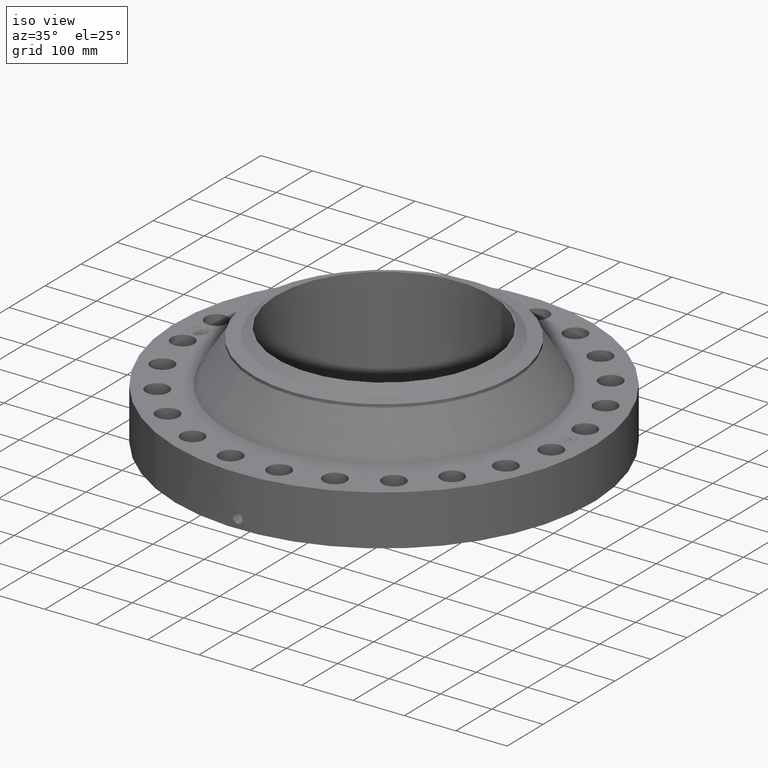
[diagram: clean part render]
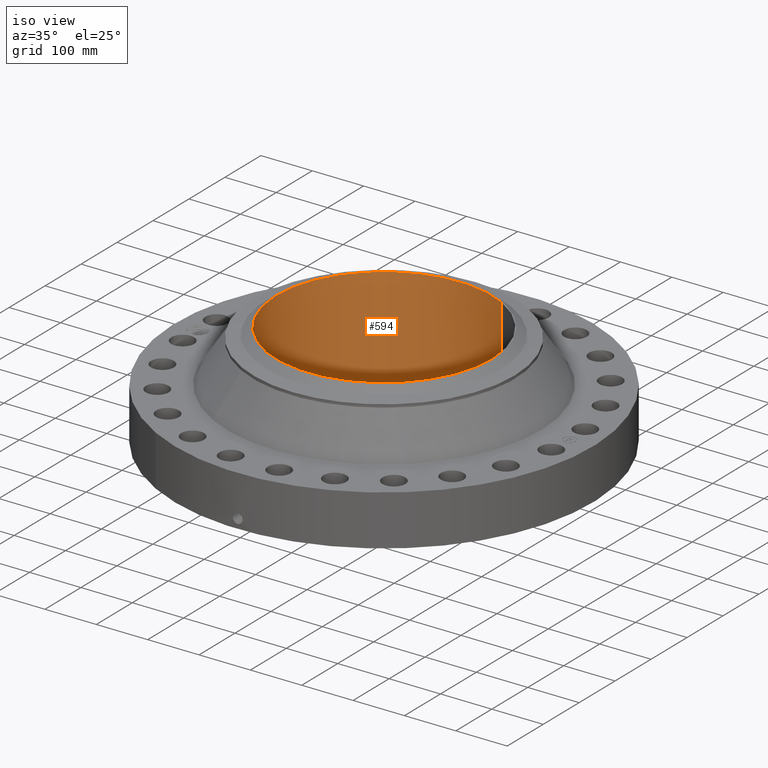
[diagram: same view with one face highlighted and labeled with its STEP entity id]
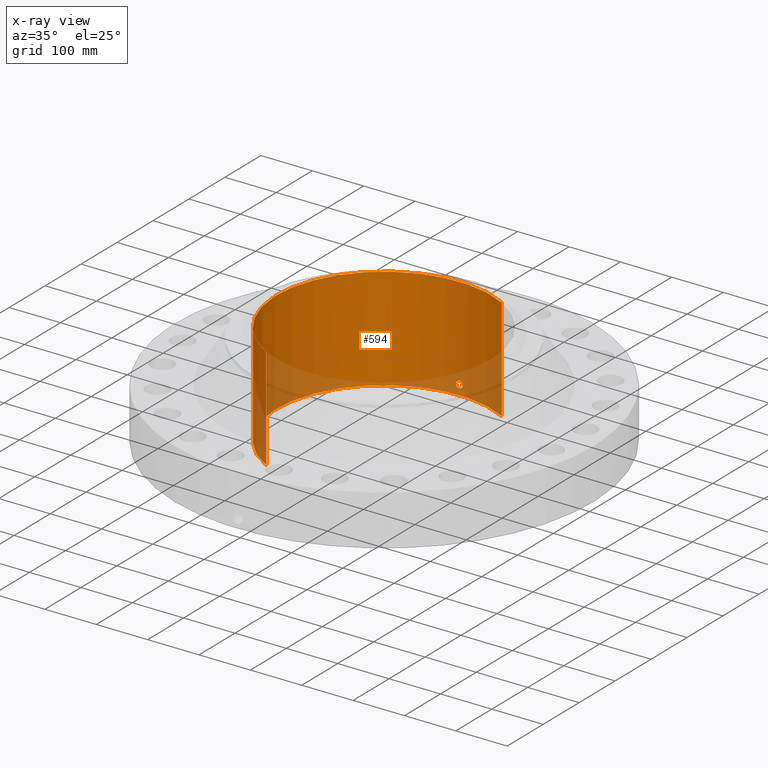
[diagram: x-ray of the same camera — body ghosted, the highlighted face saturated]
A machine part, iso view. The second image highlights one B-rep face of the part: STEP entity #594.
The next image is the same camera in x-ray: the body ghosted, the highlighted face saturated — about 20% of this face is hidden behind the body in this view.
In plain terms, the highlighted cylindrical surface (partial cylindrical patch) has radius 209.55 mm, axis along (0, 0, -1).
Its self-contained STEP definition (entity closure, byte-faithful):
#232=AXIS2_PLACEMENT_3D('Cylinder Axis2P3D',#229,#230,#231) ;
#533=AXIS2_PLACEMENT_3D('Circle Axis2P3D',#531,#532,$) ;
#543=AXIS2_PLACEMENT_3D('Circle Axis2P3D',#541,#542,$) ;
#229=CARTESIAN_POINT('Axis2P3D Location',(0.,0.,3.93750000002)) ;
#238=CARTESIAN_POINT('Vertex',(3.9552606935,7.24005613562,7.87500000003)) ;
#240=CARTESIAN_POINT('Vertex',(-3.9552606935,-7.24005613562,7.87500000003)) ;
#243=CARTESIAN_POINT('Line Origine',(3.9552606935,7.24005613562,3.93750000002)) ;
#247=CARTESIAN_POINT('Vertex',(3.9552606935,7.24005613562,-7.38516859215E-014)) ;
#254=CARTESIAN_POINT('Vertex',(-3.9552606935,-7.24005613562,-7.38516859215E-014)) ;
#257=CARTESIAN_POINT('Line Origine',(-3.9552606935,-7.24005613562,3.93750000002)) ;
#531=CARTESIAN_POINT('Axis2P3D Location',(0.,0.,7.87500000003)) ;
#541=CARTESIAN_POINT('Axis2P3D Location',(0.,0.,-7.38516859215E-014)) ;
#553=CARTESIAN_POINT('Control Point',(0.219395640473,8.24708224486,0.869856384655)) ;
#554=CARTESIAN_POINT('Control Point',(0.194443177078,8.24774605074,0.915531562527)) ;
#555=CARTESIAN_POINT('Control Point',(0.157605919929,8.24863158829,0.95471073957)) ;
#556=CARTESIAN_POINT('Control Point',(0.111109683392,8.24949278377,0.983242387189)) ;
#557=CARTESIAN_POINT('Control Point',(0.0336753629051,8.25017798873,1.00588229165)) ;
#558=CARTESIAN_POINT('Control Point',(-0.0446689823209,8.24994122763,0.998056659372)) ;
#559=CARTESIAN_POINT('Control Point',(-0.070298149277,8.2497574269,0.992044416594)) ;
#560=CARTESIAN_POINT('Control Point',(-0.143953549195,8.24894518048,0.96421372175)) ;
#561=CARTESIAN_POINT('Control Point',(-0.20324064292,8.24761932207,0.909501491169)) ;
#562=CARTESIAN_POINT('Control Point',(-0.232206727917,8.24674965403,0.863264055807)) ;
#563=CARTESIAN_POINT('Control Point',(-0.255840010948,8.24603466121,0.785116646347)) ;
#564=CARTESIAN_POINT('Control Point',(-0.24828366564,8.24626308003,0.705750360397)) ;
#565=CARTESIAN_POINT('Control Point',(-0.242049868056,8.24645425832,0.67918645327)) ;
#566=CARTESIAN_POINT('Control Point',(-0.232316018888,8.24673852637,0.653794209399)) ;
#567=CARTESIAN_POINT('Control Point',(-0.219395640474,8.24708224486,0.630143615351)) ;
#568=CARTESIAN_POINT('Vertex',(0.219395640473,8.24708224486,0.869856384655)) ;
#570=CARTESIAN_POINT('Vertex',(-0.219395640473,8.24708224486,0.630143615351)) ;
#574=CARTESIAN_POINT('Control Point',(-0.219395640473,8.24708224486,0.630143615351)) ;
#575=CARTESIAN_POINT('Control Point',(-0.194443177127,8.24774605074,0.58446843757)) ;
#576=CARTESIAN_POINT('Control Point',(-0.157605920074,8.24863158829,0.545289260591)) ;
#577=CARTESIAN_POINT('Control Point',(-0.111109683191,8.24949278377,0.516757612758)) ;
#578=CARTESIAN_POINT('Control Point',(-0.0336753628047,8.25017798873,0.494117708369)) ;
#579=CARTESIAN_POINT('Control Point',(0.0446689823182,8.24994122763,0.501943340634)) ;
#580=CARTESIAN_POINT('Control Point',(0.0702981492746,8.2497574269,0.507955583411)) ;
#581=CARTESIAN_POINT('Control Point',(0.143953549176,8.24894518048,0.535786278249)) ;
#582=CARTESIAN_POINT('Control Point',(0.203240642891,8.24761932207,0.590498508809)) ;
#583=CARTESIAN_POINT('Control Point',(0.232206727927,8.24674965403,0.636735944233)) ;
#584=CARTESIAN_POINT('Control Point',(0.255840010935,8.24603466121,0.714883353639)) ;
#585=CARTESIAN_POINT('Control Point',(0.248283665648,8.24626308003,0.794249639535)) ;
#586=CARTESIAN_POINT('Control Point',(0.24204986803,8.24645425832,0.820813546803)) ;
#587=CARTESIAN_POINT('Control Point',(0.232316018871,8.24673852637,0.846205790638)) ;
#588=CARTESIAN_POINT('Control Point',(0.219395640473,8.24708224486,0.869856384655)) ;
#230=DIRECTION('Axis2P3D Direction',(0.,0.,-0.0393700787402)) ;
#231=DIRECTION('Axis2P3D XDirection',(-0.0188750212049,-0.0345504945626,0.)) ;
#244=DIRECTION('Vector Direction',(0.,0.,-0.0393700787402)) ;
#258=DIRECTION('Vector Direction',(0.,0.,-0.0393700787402)) ;
#532=DIRECTION('Axis2P3D Direction',(0.,0.,-0.0393700787402)) ;
#542=DIRECTION('Axis2P3D Direction',(0.,0.,-0.0393700787402)) ;
#245=VECTOR('Line Direction',#244,0.0393700787402) ;
#259=VECTOR('Line Direction',#258,0.0393700787402) ;
#547=ORIENTED_EDGE('',*,*,#535,.F.) ;
#548=ORIENTED_EDGE('',*,*,#261,.T.) ;
#549=ORIENTED_EDGE('',*,*,#545,.T.) ;
#550=ORIENTED_EDGE('',*,*,#249,.F.) ;
#591=ORIENTED_EDGE('',*,*,#572,.F.) ;
#592=ORIENTED_EDGE('',*,*,#589,.F.) ;
#593=FACE_BOUND('',#590,.T.) ;
#594=ADVANCED_FACE('PartBody',(#551,#593),#233,.F.) ;
#552=B_SPLINE_CURVE_WITH_KNOTS('',5,(#553,#554,#555,#556,#557,#558,#559,#560,#561,#562,#563,#564,#565,#566,#567),.UNSPECIFIED.,.F.,.U.,(6,3,3,3,6),(0.,9.34859403407,14.0228130084,23.3728460055,28.2135453245),.UNSPECIFIED.) ;
#573=B_SPLINE_CURVE_WITH_KNOTS('',5,(#574,#575,#576,#577,#578,#579,#580,#581,#582,#583,#584,#585,#586,#587,#588),.UNSPECIFIED.,.F.,.U.,(6,3,3,3,6),(0.,9.34859401561,14.0228129899,23.3728459839,28.2135452964),.UNSPECIFIED.) ;
#534=CIRCLE('generated circle',#533,8.25000000003) ;
#544=CIRCLE('generated circle',#543,8.25000000003) ;
#233=CYLINDRICAL_SURFACE('generated cylinder',#232,8.25000000003) ;
#249=EDGE_CURVE('',#239,#248,#246,.T.) ;
#261=EDGE_CURVE('',#241,#255,#260,.T.) ;
#535=EDGE_CURVE('',#241,#239,#534,.T.) ;
#545=EDGE_CURVE('',#255,#248,#544,.T.) ;
#572=EDGE_CURVE('',#569,#571,#552,.T.) ;
#589=EDGE_CURVE('',#571,#569,#573,.T.) ;
#546=EDGE_LOOP('',(#547,#548,#549,#550)) ;
#590=EDGE_LOOP('',(#591,#592)) ;
#551=FACE_OUTER_BOUND('',#546,.T.) ;
#246=LINE('Line',#243,#245) ;
#260=LINE('Line',#257,#259) ;
#239=VERTEX_POINT('',#238) ;
#241=VERTEX_POINT('',#240) ;
#248=VERTEX_POINT('',#247) ;
#255=VERTEX_POINT('',#254) ;
#569=VERTEX_POINT('',#568) ;
#571=VERTEX_POINT('',#570) ;